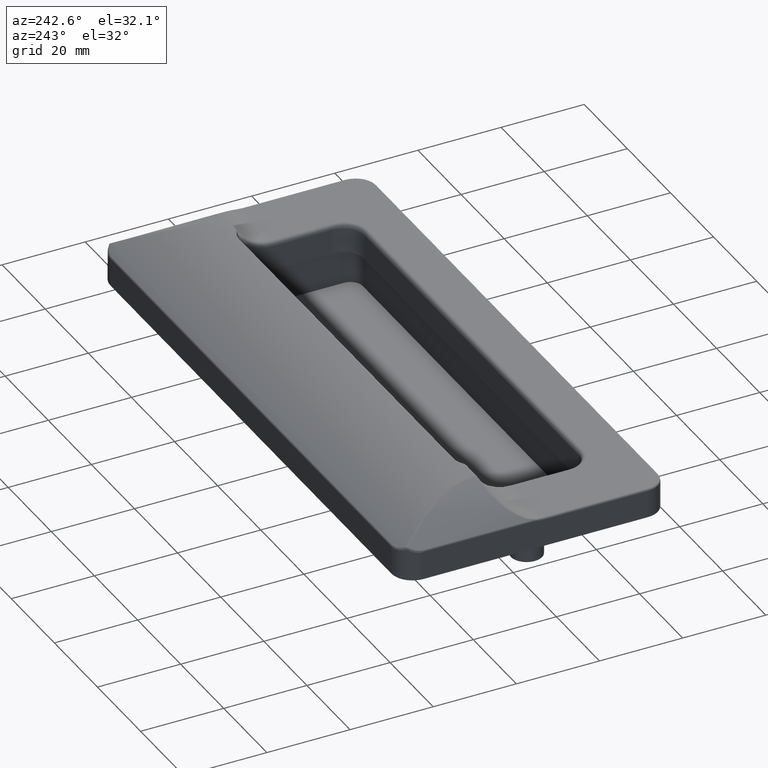
[diagram: clean part render]
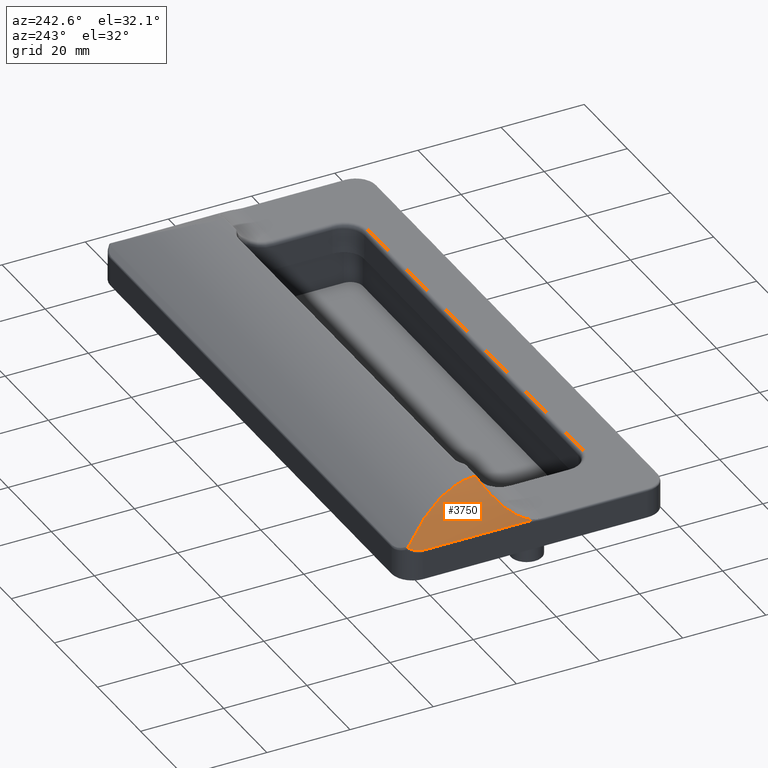
[diagram: same view with one face highlighted and labeled with its STEP entity id]
A machine part, auxiliary view. The second image highlights one B-rep face of the part: STEP entity #3750.
In plain terms, the highlighted cylindrical surface (partial cylindrical patch) has radius 48.5 mm, axis along (0, -1, 0).
Its self-contained STEP definition (entity closure, byte-faithful):
#85=CYLINDRICAL_SURFACE('',#4048,48.5);
#245=LINE('',#7671,#531);
#531=VECTOR('',#4684,26.2661255645475);
#895=FACE_OUTER_BOUND('',#1134,.T.);
#1134=EDGE_LOOP('',(#2935,#2936,#2937,#2938,#2939,#2940));
#1509=B_SPLINE_CURVE_WITH_KNOTS('',3,(#6443,#6444,#6445,#6446,#6447,#6448,
#6449),.UNSPECIFIED.,.F.,.F.,(4,3,4),(0.49999999999996,0.895727576987173,
1.),.UNSPECIFIED.);
#1542=B_SPLINE_CURVE_WITH_KNOTS('',3,(#7143,#7144,#7145,#7146),
 .UNSPECIFIED.,.F.,.F.,(4,4),(0.,0.49999999999996),.UNSPECIFIED.);
#1544=B_SPLINE_CURVE_WITH_KNOTS('',3,(#7283,#7284,#7285,#7286,#7287,#7288),
 .UNSPECIFIED.,.F.,.F.,(4,1,1,4),(-1.93271809129593,-1.24525449737676,-0.786945434763983,
-0.328636372151203),.UNSPECIFIED.);
#1549=B_SPLINE_CURVE_WITH_KNOTS('',3,(#7491,#7492,#7493,#7494,#7495,#7496,
#7497),.UNSPECIFIED.,.F.,.F.,(4,1,1,1,4),(-3.67396300796983,-2.5890420264883,
-1.86576137216729,-1.5945311267969,-1.14248071784627),.UNSPECIFIED.);
#1554=B_SPLINE_CURVE_WITH_KNOTS('',3,(#7660,#7661,#7662,#7663,#7664),
 .UNSPECIFIED.,.F.,.F.,(4,1,4),(3.08567674435871,3.23236636435268,3.42795252434465),
 .UNSPECIFIED.);
#1592=VERTEX_POINT('',#6435);
#1593=VERTEX_POINT('',#6442);
#1718=VERTEX_POINT('',#7046);
#1720=VERTEX_POINT('',#7141);
#1724=VERTEX_POINT('',#7250);
#1741=VERTEX_POINT('',#7658);
#1952=EDGE_CURVE('',#1592,#1593,#1509,.T.);
#2121=EDGE_CURVE('',#1720,#1592,#1542,.T.);
#2129=EDGE_CURVE('',#1724,#1720,#1544,.T.);
#2143=EDGE_CURVE('',#1718,#1724,#1549,.T.);
#2169=EDGE_CURVE('',#1741,#1718,#1554,.T.);
#2171=EDGE_CURVE('',#1593,#1741,#245,.T.);
#2935=ORIENTED_EDGE('',*,*,#2121,.F.);
#2936=ORIENTED_EDGE('',*,*,#2129,.F.);
#2937=ORIENTED_EDGE('',*,*,#2143,.F.);
#2938=ORIENTED_EDGE('',*,*,#2169,.F.);
#2939=ORIENTED_EDGE('',*,*,#2171,.F.);
#2940=ORIENTED_EDGE('',*,*,#1952,.F.);
#3750=ADVANCED_FACE('',(#895),#85,.T.);
#4048=AXIS2_PLACEMENT_3D('',#7692,#4708,#4709);
#4684=DIRECTION('',(-9.25185853854297E-17,1.,0.));
#4708=DIRECTION('center_axis',(9.25185853854297E-17,-1.,0.));
#4709=DIRECTION('ref_axis',(-0.622387819075384,-5.75824405819773E-17,0.782709015322161));
#6435=CARTESIAN_POINT('',(-70.0186640467258,0.66552165622314,7.18280669257279));
#6442=CARTESIAN_POINT('',(-70.0592271794287,0.733874435452533,7.15091773948719));
#6443=CARTESIAN_POINT('Ctrl Pts',(-70.0186640467258,0.665521656223125,7.18280669257279));
#6444=CARTESIAN_POINT('Ctrl Pts',(-70.0380112610339,0.670131113041545,7.16761340745967));
#6445=CARTESIAN_POINT('Ctrl Pts',(-70.0554599517118,0.684836692558496,7.15388249530602));
#6446=CARTESIAN_POINT('Ctrl Pts',(-70.058407896874,0.711502057093352,7.15156251462175));
#6447=CARTESIAN_POINT('Ctrl Pts',(-70.0591846670636,0.718528259795064,7.15095121022609));
#6448=CARTESIAN_POINT('Ctrl Pts',(-70.0592271794287,0.726181291690756,7.15091773948719));
#6449=CARTESIAN_POINT('Ctrl Pts',(-70.0592271794287,0.733874435452533,7.15091773948719));
#7046=CARTESIAN_POINT('',(-68.9051779397616,29.9958063409498,8.0315282589642));
#7141=CARTESIAN_POINT('',(-69.9605404218746,0.710418137805332,7.22837941998128));
#7143=CARTESIAN_POINT('Ctrl Pts',(-69.9605404218746,0.710418137805338,7.22837941998128));
#7144=CARTESIAN_POINT('Ctrl Pts',(-69.9705614492558,0.679458245007921,7.2205345923065));
#7145=CARTESIAN_POINT('Ctrl Pts',(-69.9964826305763,0.660236953304946,7.20022566433829));
#7146=CARTESIAN_POINT('Ctrl Pts',(-70.0186640467258,0.665521656223143,7.18280669257279));
#7250=CARTESIAN_POINT('',(-58.3441870981306,8.34354491664086,13.9617886733286));
#7283=CARTESIAN_POINT('Ctrl Pts',(-58.3441870981306,8.34354491664086,13.9617886733286));
#7284=CARTESIAN_POINT('Ctrl Pts',(-60.4650721950421,8.00133470589168,13.0987648335681));
#7285=CARTESIAN_POINT('Ctrl Pts',(-63.8705296060424,7.14633979622967,11.4121140973976));
#7286=CARTESIAN_POINT('Ctrl Pts',(-67.9019273745297,4.55503582527044,8.81118818256751));
#7287=CARTESIAN_POINT('Ctrl Pts',(-69.5024924689287,2.12555402954188,7.58695615277934));
#7288=CARTESIAN_POINT('Ctrl Pts',(-69.9605404218746,0.710418137805324,7.22837941998128));
#7491=CARTESIAN_POINT('Ctrl Pts',(-68.9051779397616,29.9958063409498,8.03152825896419));
#7492=CARTESIAN_POINT('Ctrl Pts',(-66.8645735883565,27.3966734165152,9.54085484174804));
#7493=CARTESIAN_POINT('Ctrl Pts',(-63.4675862524225,22.8088864742321,11.627468644026));
#7494=CARTESIAN_POINT('Ctrl Pts',(-60.2387647158884,16.8021093098315,13.1580845602496));
#7495=CARTESIAN_POINT('Ctrl Pts',(-58.7354381815359,12.2483801094851,13.8043261119139));
#7496=CARTESIAN_POINT('Ctrl Pts',(-58.373313614195,9.85069829392609,13.949936603752));
#7497=CARTESIAN_POINT('Ctrl Pts',(-58.3441870981306,8.34354491664083,13.9617886733286));
#7658=CARTESIAN_POINT('',(-70.0592271794287,27.,7.15091773948719));
#7660=CARTESIAN_POINT('Ctrl Pts',(-70.0592271794287,27.,7.15091773948719));
#7661=CARTESIAN_POINT('Ctrl Pts',(-70.0592271794287,27.4889653999799,7.15091773948719));
#7662=CARTESIAN_POINT('Ctrl Pts',(-69.8647613366671,28.6276117085871,7.3050628579837));
#7663=CARTESIAN_POINT('Ctrl Pts',(-69.2986138408572,29.5593701009207,7.74052463362334));
#7664=CARTESIAN_POINT('Ctrl Pts',(-68.9051779397616,29.9958063409498,8.0315282589642));
#7671=CARTESIAN_POINT('',(-70.0592271794287,32.,7.15091773948719));
#7692=CARTESIAN_POINT('Origin',(-40.0641907748439,32.,-30.9613872431248));